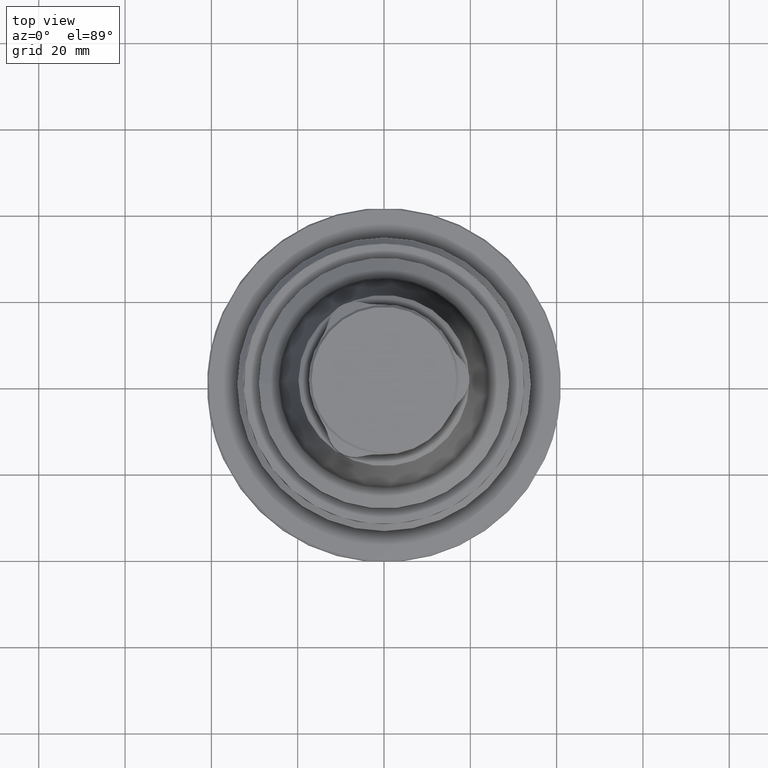
[diagram: clean part render]
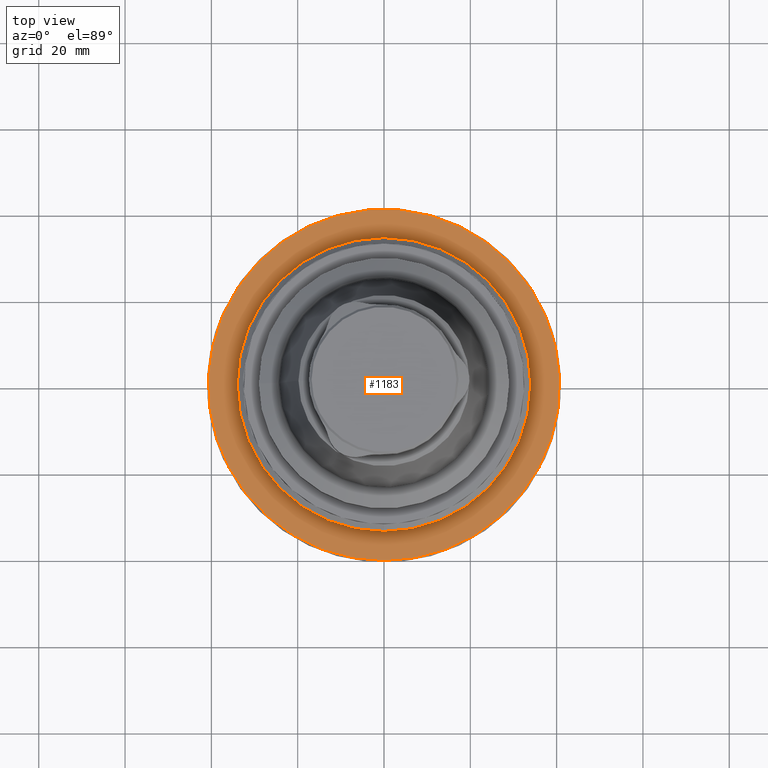
[diagram: same view with one face highlighted and labeled with its STEP entity id]
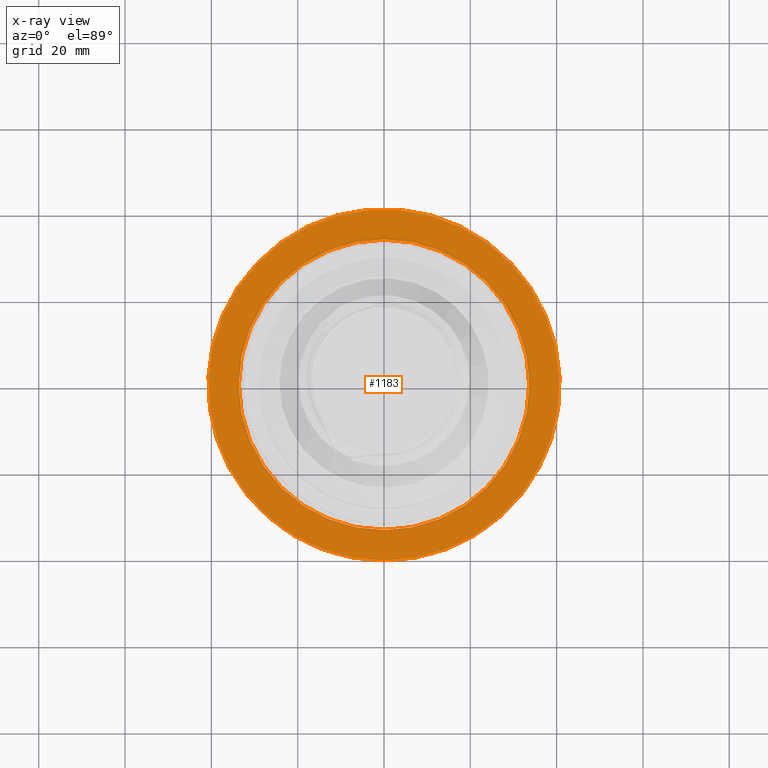
[diagram: x-ray of the same camera — body ghosted, the highlighted face saturated]
A machine part, top view. The second image highlights one B-rep face of the part: STEP entity #1183.
The next image is the same camera in x-ray: the body ghosted, the highlighted face saturated — about 0% of this face is hidden behind the body in this view.
In plain terms, the highlighted planar face has unit normal (-0, 0, -1).
Its self-contained STEP definition (entity closure, byte-faithful):
#28=PLANE('',#1314);
#311=ORIENTED_EDGE('',*,*,#589,.T.);
#312=ORIENTED_EDGE('',*,*,#590,.F.);
#589=EDGE_CURVE('',#740,#740,#851,.T.);
#590=EDGE_CURVE('',#741,#741,#852,.T.);
#740=VERTEX_POINT('',#1921);
#741=VERTEX_POINT('',#1924);
#851=CIRCLE('',#1313,33.65);
#852=CIRCLE('',#1315,40.7);
#946=EDGE_LOOP('',(#311));
#947=EDGE_LOOP('',(#312));
#1071=FACE_BOUND('',#946,.T.);
#1072=FACE_BOUND('',#947,.T.);
#1183=ADVANCED_FACE('',(#1071,#1072),#28,.F.);
#1313=AXIS2_PLACEMENT_3D('',#1920,#1546,#1547);
#1314=AXIS2_PLACEMENT_3D('',#1922,#1548,#1549);
#1315=AXIS2_PLACEMENT_3D('',#1923,#1550,#1551);
#1546=DIRECTION('',(-1.04225259501902E-17,1.66533453693774E-16,-1.));
#1547=DIRECTION('',(0.,-1.,-3.33066907387547E-16));
#1548=DIRECTION('',(-1.04225259501902E-17,1.66533453693774E-16,-1.));
#1549=DIRECTION('',(0.,-1.,-3.33066907387547E-16));
#1550=DIRECTION('',(-1.04225259501902E-17,1.66533453693774E-16,-1.));
#1551=DIRECTION('',(0.,-1.,-3.33066907387547E-16));
#1920=CARTESIAN_POINT('',(7.78659487647478E-15,1.04360964314765E-14,-1.00000000000001));
#1921=CARTESIAN_POINT('',(7.78659487647478E-15,-33.65,-1.00000000000002));
#1922=CARTESIAN_POINT('',(7.78659487647478E-15,-33.65,-1.00000000000002));
#1923=CARTESIAN_POINT('',(7.78659487647478E-15,1.04360964314765E-14,-1.00000000000001));
#1924=CARTESIAN_POINT('',(7.78659487647478E-15,-40.7,-1.00000000000002));